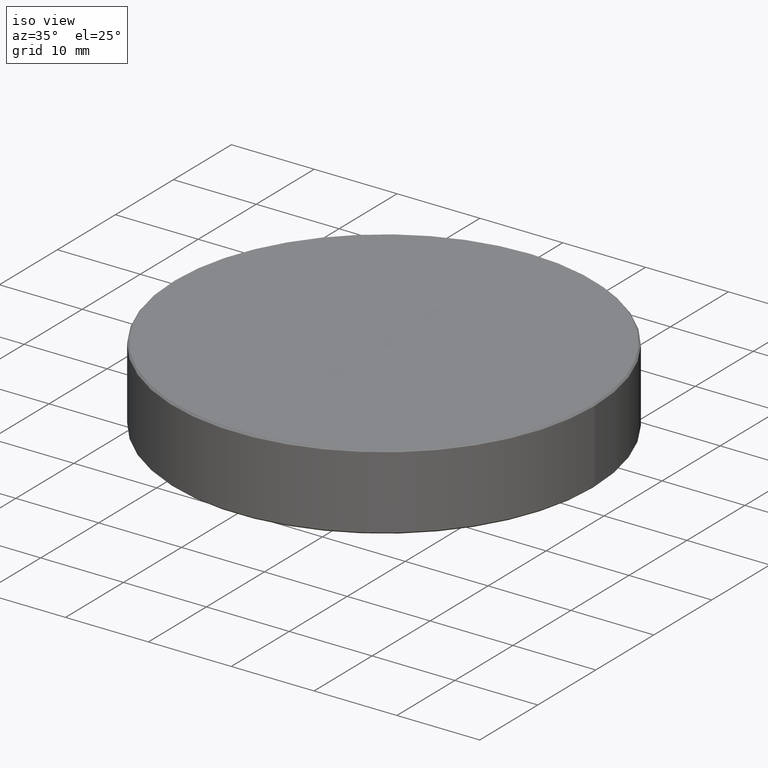
[diagram: clean part render]
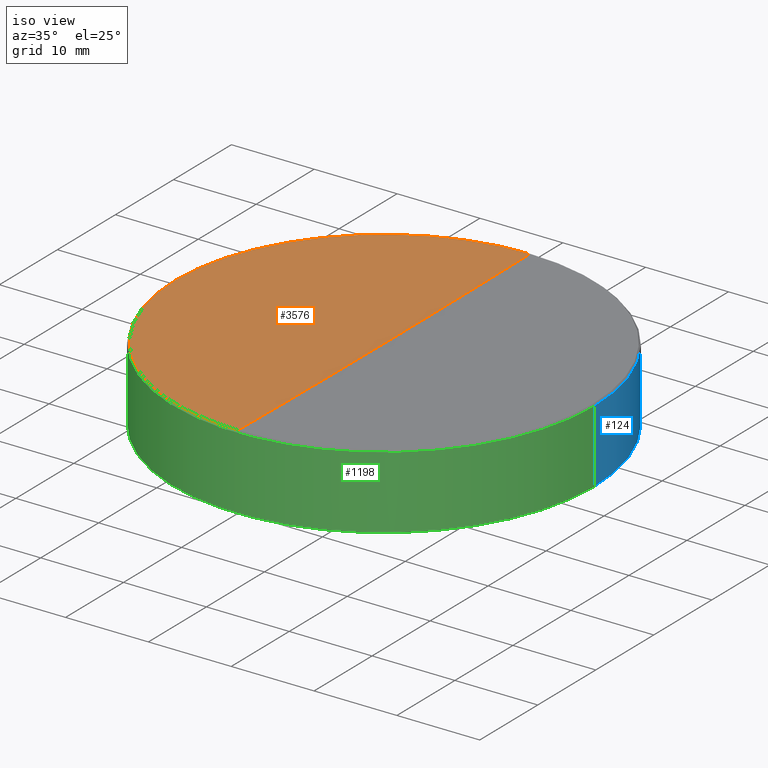
[diagram: same view with three faces highlighted in distinct colors, each labeled with its STEP entity id]
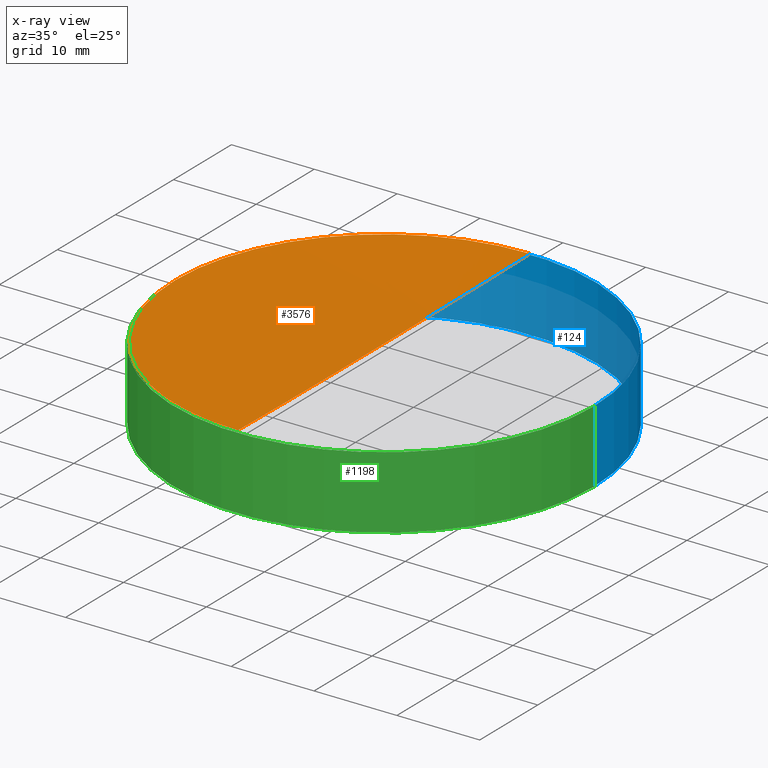
[diagram: x-ray of the same camera — body ghosted, the three highlighted faces saturated]
A machine part, iso view with three faces highlighted in distinct colors.
The next image is the same camera in x-ray (body ghosted, the three faces saturated) — at least one of them is partly hidden behind the body in this view.
Their STEP definitions:

[orange] entity #3576 — the highlighted spherical surface has radius 2000 mm.
#63 = DIRECTION ( 'NONE',  ( -0.0000000000000000000, -0.0000000000000000000, 1.000000000000000000 ) ) ;
#257 = CARTESIAN_POINT ( 'NONE',  ( 11.44772713437241762, 32.83770453264040867, 43.24176989126149806 ) ) ;
#401 = EDGE_CURVE ( 'NONE', #4326, #3353, #1620, .T. ) ;
#511 = CIRCLE ( 'NONE', #2975, 2000.000006776843975 ) ;
#641 = VERTEX_POINT ( 'NONE', #257 ) ;
#671 = VERTEX_POINT ( 'NONE', #3788 ) ;
#684 = EDGE_CURVE ( 'NONE', #641, #671, #3178, .T. ) ;
#711 = CARTESIAN_POINT ( 'NONE',  ( 11.44772713437241762, 32.83770453264028077, 2043.241776668105558 ) ) ;
#876 = DIRECTION ( 'NONE',  ( -1.000000000000000000, 0.0000000000000000000, 0.0000000000000000000 ) ) ;
#969 = CIRCLE ( 'NONE', #3482, 25.20249871458333146 ) ;
#1123 = DIRECTION ( 'NONE',  ( -0.0000000000000000000, -0.0000000000000000000, 1.000000000000000000 ) ) ;
#1194 = EDGE_CURVE ( 'NONE', #671, #4326, #969, .T. ) ;
#1361 = AXIS2_PLACEMENT_3D ( 'NONE', #3967, #876, #1580 ) ;
#1415 = CARTESIAN_POINT ( 'NONE',  ( 11.44772713437241762, 32.83770453264028077, 43.40056768027252332 ) ) ;
#1580 = DIRECTION ( 'NONE',  ( 0.0000000000000000000, 1.000000000000000000, 0.0000000000000000000 ) ) ;
#1586 = CARTESIAN_POINT ( 'NONE',  ( 11.44772713437241762, 32.83770453264028077, 2043.241776668105558 ) ) ;
#1620 = CIRCLE ( 'NONE', #1707, 25.20249871458333146 ) ;
#1707 = AXIS2_PLACEMENT_3D ( 'NONE', #2166, #1123, #1790 ) ;
#1747 = DIRECTION ( 'NONE',  ( 1.000000000000000000, -0.0000000000000000000, 0.0000000000000000000 ) ) ;
#1790 = DIRECTION ( 'NONE',  ( 1.000000000000000000, 0.0000000000000000000, 0.0000000000000000000 ) ) ;
#1891 = ORIENTED_EDGE ( 'NONE', *, *, #684, .T. ) ;
#2166 = CARTESIAN_POINT ( 'NONE',  ( 11.44772713437241762, 32.83770453264028077, 43.40056768027252332 ) ) ;
#2268 = CARTESIAN_POINT ( 'NONE',  ( -13.75477158021091029, 32.83770453264028077, 43.40056768027252332 ) ) ;
#2274 = DIRECTION ( 'NONE',  ( -1.000000000000000000, 1.224646799147353207E-16, 0.0000000000000000000 ) ) ;
#2327 = CARTESIAN_POINT ( 'NONE',  ( 11.44772713437241407, 7.635205818059740857, 43.40056768027237410 ) ) ;
#2975 = AXIS2_PLACEMENT_3D ( 'NONE', #1586, #2274, #3592 ) ;
#3178 = CIRCLE ( 'NONE', #3910, 2000.000006776843975 ) ;
#3353 = VERTEX_POINT ( 'NONE', #2327 ) ;
#3460 = FACE_OUTER_BOUND ( 'NONE', #3553, .T. ) ;
#3482 = AXIS2_PLACEMENT_3D ( 'NONE', #1415, #63, #3526 ) ;
#3526 = DIRECTION ( 'NONE',  ( 1.000000000000000000, 0.0000000000000000000, 0.0000000000000000000 ) ) ;
#3553 = EDGE_LOOP ( 'NONE', ( #3601, #1891, #3744, #4265 ) ) ;
#3576 = ADVANCED_FACE ( 'NONE', ( #3460 ), #3941, .F. ) ;
#3592 = DIRECTION ( 'NONE',  ( -1.222980046419676631E-16, -1.000000000000000000, 0.0000000000000000000 ) ) ;
#3601 = ORIENTED_EDGE ( 'NONE', *, *, #4017, .F. ) ;
#3744 = ORIENTED_EDGE ( 'NONE', *, *, #1194, .T. ) ;
#3788 = CARTESIAN_POINT ( 'NONE',  ( 11.44772713437241762, 58.04020324722082336, 43.40056768027237410 ) ) ;
#3910 = AXIS2_PLACEMENT_3D ( 'NONE', #711, #1747, #4446 ) ;
#3941 = SPHERICAL_SURFACE ( 'NONE', #1361, 2000.000006776843975 ) ;
#3967 = CARTESIAN_POINT ( 'NONE',  ( 11.44772713437241762, 32.83770453264028077, 2043.241776668105558 ) ) ;
#4017 = EDGE_CURVE ( 'NONE', #641, #3353, #511, .T. ) ;
#4265 = ORIENTED_EDGE ( 'NONE', *, *, #401, .T. ) ;
#4326 = VERTEX_POINT ( 'NONE', #2268 ) ;
#4446 = DIRECTION ( 'NONE',  ( 0.0000000000000000000, 0.0000000000000000000, -1.000000000000000000 ) ) ;

[blue] entity #124 — the highlighted cylindrical surface (partial cylindrical patch) has radius 25.4 mm, axis along (-0, -0, 1).
#124 = ADVANCED_FACE ( 'NONE', ( #1844 ), #1030, .T. ) ;
#431 = DIRECTION ( 'NONE',  ( -0.0000000000000000000, -0.0000000000000000000, 1.000000000000000000 ) ) ;
#789 = AXIS2_PLACEMENT_3D ( 'NONE', #909, #3919, #3007 ) ;
#887 = CARTESIAN_POINT ( 'NONE',  ( 11.44772713437241762, 32.83770453264028077, 43.20306639485600897 ) ) ;
#909 = CARTESIAN_POINT ( 'NONE',  ( 11.44772713437241762, 32.83770453264028077, 43.24176989126156201 ) ) ;
#911 = ORIENTED_EDGE ( 'NONE', *, *, #2409, .T. ) ;
#1014 = DIRECTION ( 'NONE',  ( -0.0000000000000000000, -0.0000000000000000000, 1.000000000000000000 ) ) ;
#1030 = CYLINDRICAL_SURFACE ( 'NONE', #789, 25.39999999999999503 ) ;
#1525 = VERTEX_POINT ( 'NONE', #2536 ) ;
#1652 = DIRECTION ( 'NONE',  ( -0.0000000000000000000, -0.0000000000000000000, 1.000000000000000000 ) ) ;
#1660 = VERTEX_POINT ( 'NONE', #4451 ) ;
#1844 = FACE_OUTER_BOUND ( 'NONE', #1870, .T. ) ;
#1870 = EDGE_LOOP ( 'NONE', ( #911, #2005, #2647, #2308 ) ) ;
#1903 = DIRECTION ( 'NONE',  ( 0.0000000000000000000, 0.0000000000000000000, -1.000000000000000000 ) ) ;
#1918 = CIRCLE ( 'NONE', #3736, 25.39999999999999858 ) ;
#1964 = LINE ( 'NONE', #2672, #2769 ) ;
#2005 = ORIENTED_EDGE ( 'NONE', *, *, #4365, .T. ) ;
#2014 = EDGE_CURVE ( 'NONE', #4392, #1660, #2664, .T. ) ;
#2308 = ORIENTED_EDGE ( 'NONE', *, *, #2014, .F. ) ;
#2409 = EDGE_CURVE ( 'NONE', #4392, #1525, #2723, .T. ) ;
#2489 = CARTESIAN_POINT ( 'NONE',  ( 11.44772713437241762, 32.83770453264028077, 34.44176989126156485 ) ) ;
#2536 = CARTESIAN_POINT ( 'NONE',  ( -13.95227286562758096, 32.83770453264028077, 34.44176989126156485 ) ) ;
#2629 = CARTESIAN_POINT ( 'NONE',  ( -13.95227286562758096, 32.83770453264028077, 43.20306639485600897 ) ) ;
#2647 = ORIENTED_EDGE ( 'NONE', *, *, #3512, .T. ) ;
#2664 = LINE ( 'NONE', #3066, #3583 ) ;
#2672 = CARTESIAN_POINT ( 'NONE',  ( -13.95227286562758096, 32.83770453264028077, 43.24176989126156201 ) ) ;
#2723 = CIRCLE ( 'NONE', #2927, 25.39999999999999503 ) ;
#2769 = VECTOR ( 'NONE', #1652, 1000.000000000000000 ) ;
#2814 = VERTEX_POINT ( 'NONE', #2629 ) ;
#2927 = AXIS2_PLACEMENT_3D ( 'NONE', #2489, #431, #4225 ) ;
#3007 = DIRECTION ( 'NONE',  ( 1.000000000000000000, 0.0000000000000000000, 0.0000000000000000000 ) ) ;
#3066 = CARTESIAN_POINT ( 'NONE',  ( 36.84772713437241265, 32.83770453264028077, 43.24176989126156201 ) ) ;
#3512 = EDGE_CURVE ( 'NONE', #2814, #1660, #1918, .T. ) ;
#3583 = VECTOR ( 'NONE', #1014, 1000.000000000000000 ) ;
#3736 = AXIS2_PLACEMENT_3D ( 'NONE', #887, #1903, #4289 ) ;
#3919 = DIRECTION ( 'NONE',  ( -0.0000000000000000000, -0.0000000000000000000, 1.000000000000000000 ) ) ;
#4225 = DIRECTION ( 'NONE',  ( 1.000000000000000000, 0.0000000000000000000, 0.0000000000000000000 ) ) ;
#4289 = DIRECTION ( 'NONE',  ( -1.000000000000000000, 0.0000000000000000000, 0.0000000000000000000 ) ) ;
#4365 = EDGE_CURVE ( 'NONE', #1525, #2814, #1964, .T. ) ;
#4392 = VERTEX_POINT ( 'NONE', #4420 ) ;
#4420 = CARTESIAN_POINT ( 'NONE',  ( 36.84772713437241265, 32.83770453264028077, 34.44176989126156485 ) ) ;
#4451 = CARTESIAN_POINT ( 'NONE',  ( 36.84772713437241975, 32.83770453264028077, 43.20306639485600897 ) ) ;

[green] entity #1198 — the highlighted cylindrical surface (partial cylindrical patch) has radius 25.4 mm, axis along (-0, -0, 1).
#46 = CYLINDRICAL_SURFACE ( 'NONE', #2840, 25.39999999999999503 ) ;
#58 = AXIS2_PLACEMENT_3D ( 'NONE', #326, #4460, #3712 ) ;
#326 = CARTESIAN_POINT ( 'NONE',  ( 11.44772713437241762, 32.83770453264028077, 34.44176989126156485 ) ) ;
#572 = DIRECTION ( 'NONE',  ( 0.0000000000000000000, 0.0000000000000000000, -1.000000000000000000 ) ) ;
#900 = ORIENTED_EDGE ( 'NONE', *, *, #2963, .T. ) ;
#1014 = DIRECTION ( 'NONE',  ( -0.0000000000000000000, -0.0000000000000000000, 1.000000000000000000 ) ) ;
#1198 = ADVANCED_FACE ( 'NONE', ( #3966 ), #46, .T. ) ;
#1525 = VERTEX_POINT ( 'NONE', #2536 ) ;
#1652 = DIRECTION ( 'NONE',  ( -0.0000000000000000000, -0.0000000000000000000, 1.000000000000000000 ) ) ;
#1660 = VERTEX_POINT ( 'NONE', #4451 ) ;
#1702 = ORIENTED_EDGE ( 'NONE', *, *, #4365, .F. ) ;
#1964 = LINE ( 'NONE', #2672, #2769 ) ;
#1981 = DIRECTION ( 'NONE',  ( -1.000000000000000000, 0.0000000000000000000, 0.0000000000000000000 ) ) ;
#2014 = EDGE_CURVE ( 'NONE', #4392, #1660, #2664, .T. ) ;
#2086 = DIRECTION ( 'NONE',  ( -0.0000000000000000000, -0.0000000000000000000, 1.000000000000000000 ) ) ;
#2269 = ORIENTED_EDGE ( 'NONE', *, *, #2014, .T. ) ;
#2472 = CARTESIAN_POINT ( 'NONE',  ( 11.44772713437241762, 32.83770453264028077, 43.24176989126156201 ) ) ;
#2536 = CARTESIAN_POINT ( 'NONE',  ( -13.95227286562758096, 32.83770453264028077, 34.44176989126156485 ) ) ;
#2622 = EDGE_CURVE ( 'NONE', #1660, #2814, #2658, .T. ) ;
#2629 = CARTESIAN_POINT ( 'NONE',  ( -13.95227286562758096, 32.83770453264028077, 43.20306639485600897 ) ) ;
#2658 = CIRCLE ( 'NONE', #3970, 25.39999999999999858 ) ;
#2664 = LINE ( 'NONE', #3066, #3583 ) ;
#2672 = CARTESIAN_POINT ( 'NONE',  ( -13.95227286562758096, 32.83770453264028077, 43.24176989126156201 ) ) ;
#2769 = VECTOR ( 'NONE', #1652, 1000.000000000000000 ) ;
#2814 = VERTEX_POINT ( 'NONE', #2629 ) ;
#2840 = AXIS2_PLACEMENT_3D ( 'NONE', #2472, #2086, #3478 ) ;
#2963 = EDGE_CURVE ( 'NONE', #1525, #4392, #3671, .T. ) ;
#3066 = CARTESIAN_POINT ( 'NONE',  ( 36.84772713437241265, 32.83770453264028077, 43.24176989126156201 ) ) ;
#3259 = EDGE_LOOP ( 'NONE', ( #1702, #900, #2269, #4314 ) ) ;
#3478 = DIRECTION ( 'NONE',  ( 1.000000000000000000, 0.0000000000000000000, 0.0000000000000000000 ) ) ;
#3583 = VECTOR ( 'NONE', #1014, 1000.000000000000000 ) ;
#3671 = CIRCLE ( 'NONE', #58, 25.39999999999999503 ) ;
#3674 = CARTESIAN_POINT ( 'NONE',  ( 11.44772713437241762, 32.83770453264028077, 43.20306639485600897 ) ) ;
#3712 = DIRECTION ( 'NONE',  ( 1.000000000000000000, 0.0000000000000000000, 0.0000000000000000000 ) ) ;
#3966 = FACE_OUTER_BOUND ( 'NONE', #3259, .T. ) ;
#3970 = AXIS2_PLACEMENT_3D ( 'NONE', #3674, #572, #1981 ) ;
#4314 = ORIENTED_EDGE ( 'NONE', *, *, #2622, .T. ) ;
#4365 = EDGE_CURVE ( 'NONE', #1525, #2814, #1964, .T. ) ;
#4392 = VERTEX_POINT ( 'NONE', #4420 ) ;
#4420 = CARTESIAN_POINT ( 'NONE',  ( 36.84772713437241265, 32.83770453264028077, 34.44176989126156485 ) ) ;
#4451 = CARTESIAN_POINT ( 'NONE',  ( 36.84772713437241975, 32.83770453264028077, 43.20306639485600897 ) ) ;
#4460 = DIRECTION ( 'NONE',  ( -0.0000000000000000000, -0.0000000000000000000, 1.000000000000000000 ) ) ;